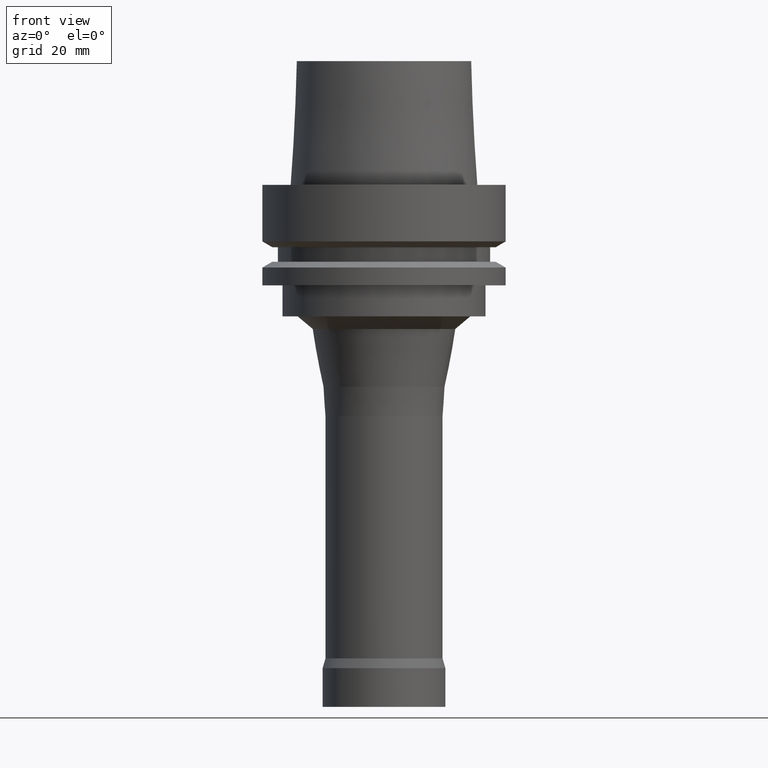
[diagram: clean part render]
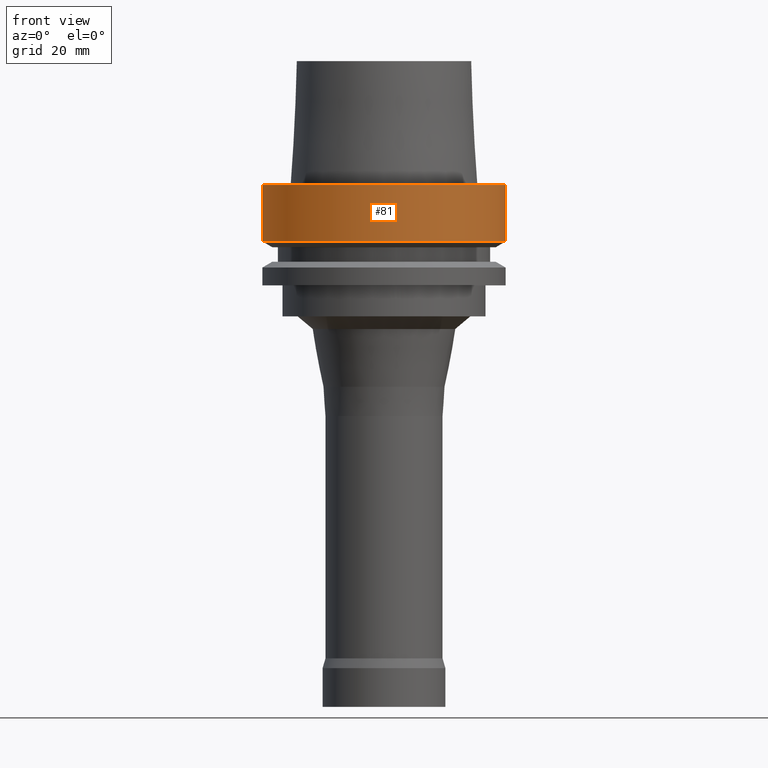
[diagram: same view with one face highlighted and labeled with its STEP entity id]
A machine part, front view. The second image highlights one B-rep face of the part: STEP entity #81.
In plain terms, the highlighted cylindrical surface (bore or boss wall) has radius 31.5 mm, axis along (-0, -0, 1).
Its self-contained STEP definition (entity closure, byte-faithful):
#81=ADVANCED_FACE('',(#113,#114),#115,.T.);
#113=FACE_BOUND('',#171,.T.);
#114=FACE_BOUND('',#172,.T.);
#115=CYLINDRICAL_SURFACE('',#173,31.5);
#171=EDGE_LOOP('',(#241));
#172=EDGE_LOOP('',(#242));
#173=AXIS2_PLACEMENT_3D('',#243,#244,#245);
#241=ORIENTED_EDGE('',*,*,#317,.F.);
#242=ORIENTED_EDGE('',*,*,#315,.T.);
#243=CARTESIAN_POINT('',(4.47684973986342E-016,8.95369947972684E-016,-7.311250465));
#244=DIRECTION('',(-6.12323399573677E-017,-1.22464679914735E-016,1.0));
#245=DIRECTION('',(-1.23259516440783E-032,1.0,1.22464679914735E-016));
#315=EDGE_CURVE('',#339,#339,#340,.T.);
#317=EDGE_CURVE('',#343,#343,#344,.T.);
#339=VERTEX_POINT('',#377);
#340=CIRCLE('',#378,31.5);
#343=VERTEX_POINT('',#381);
#344=CIRCLE('',#382,31.5);
#377=CARTESIAN_POINT('',(-3.8214424279273E-031,31.5,3.75763741731416E-015));
#378=AXIS2_PLACEMENT_3D('',#420,#421,#422);
#381=CARTESIAN_POINT('',(8.95369947972684E-016,31.5,-14.62250093));
#382=AXIS2_PLACEMENT_3D('',#426,#427,#428);
#420=CARTESIAN_POINT('',(6.12323399573677E-033,1.22464679914735E-032,-1.0E-016));
#421=DIRECTION('',(6.12323399573677E-017,1.22464679914735E-016,-1.0));
#422=DIRECTION('',(-1.23259516440783E-032,1.0,1.22464679914735E-016));
#426=CARTESIAN_POINT('',(8.95369947972685E-016,1.79073989594537E-015,-14.62250093));
#427=DIRECTION('',(6.12323399573677E-017,1.22464679914735E-016,-1.0));
#428=DIRECTION('',(-1.23259516440783E-032,1.0,1.22464679914735E-016));